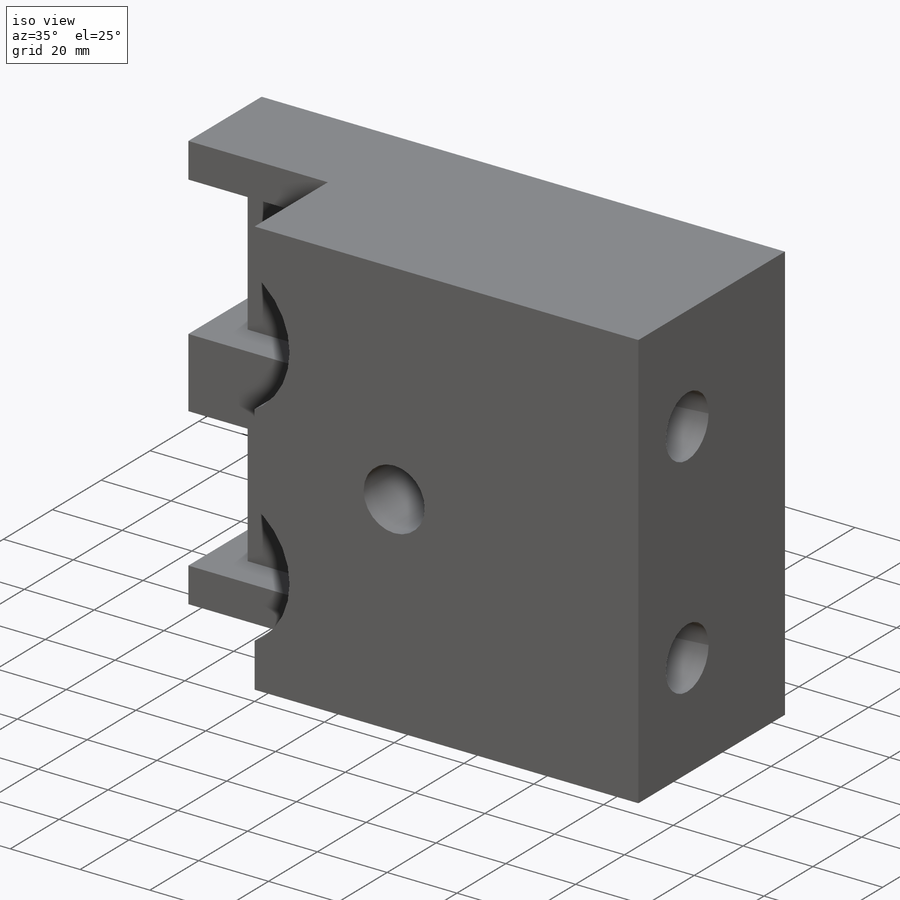
[diagram: iso view]
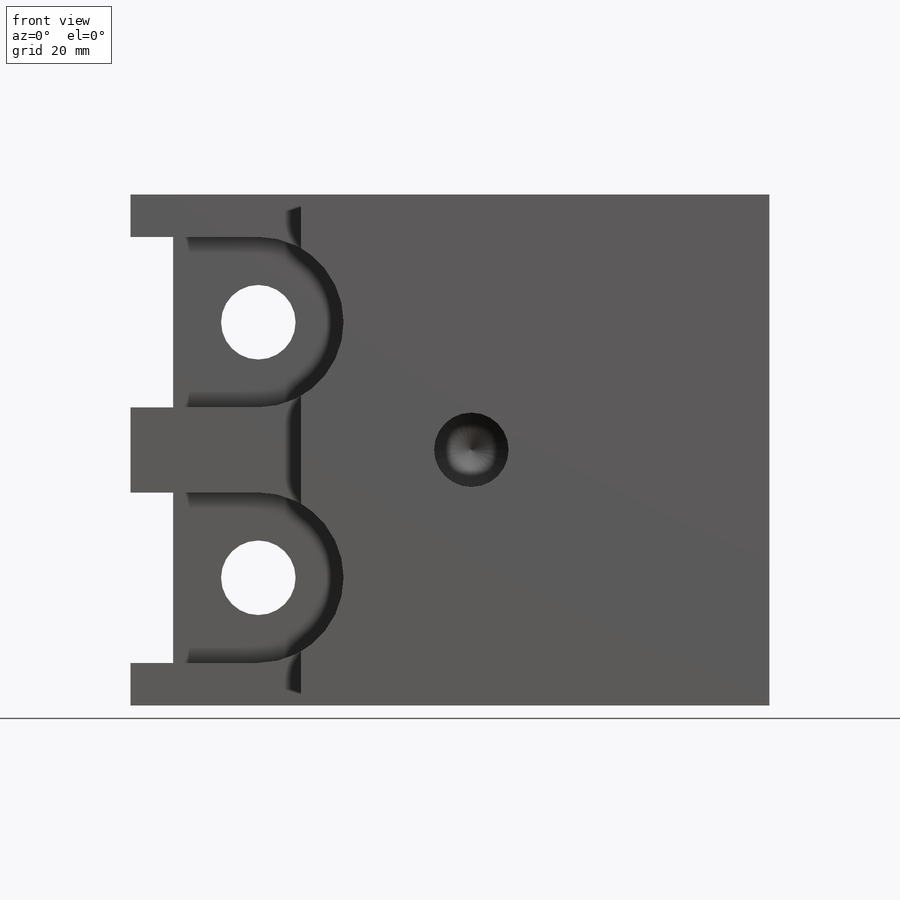
[diagram: front view]
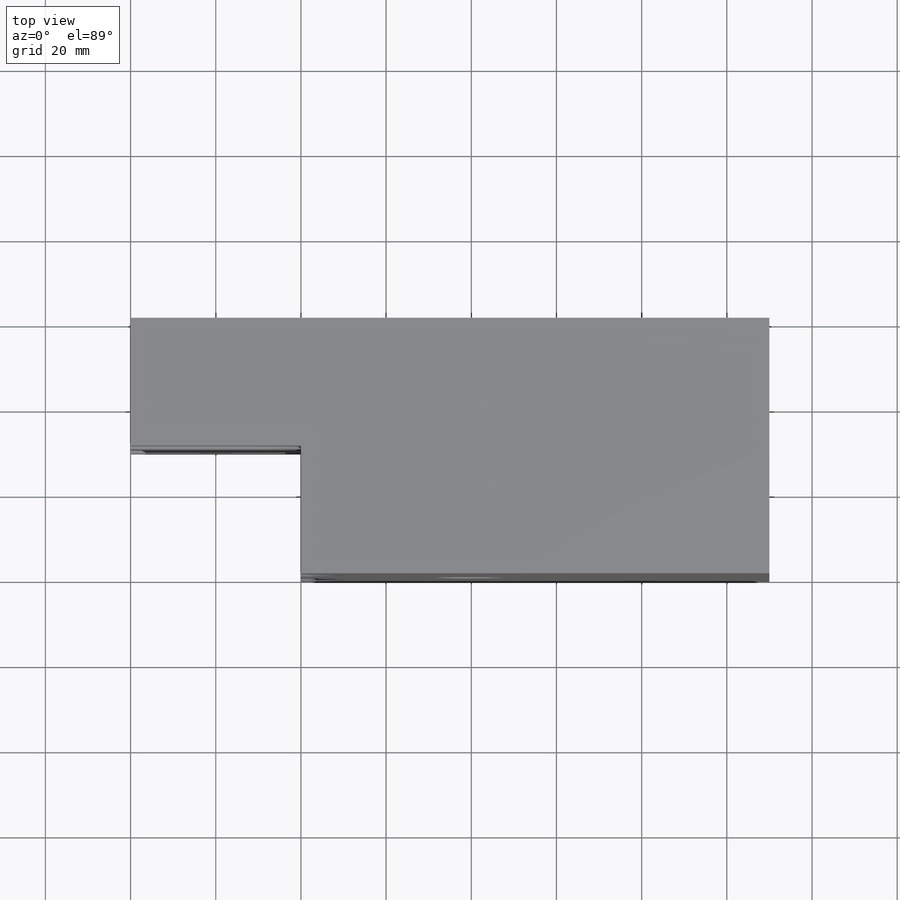
[diagram: top view]
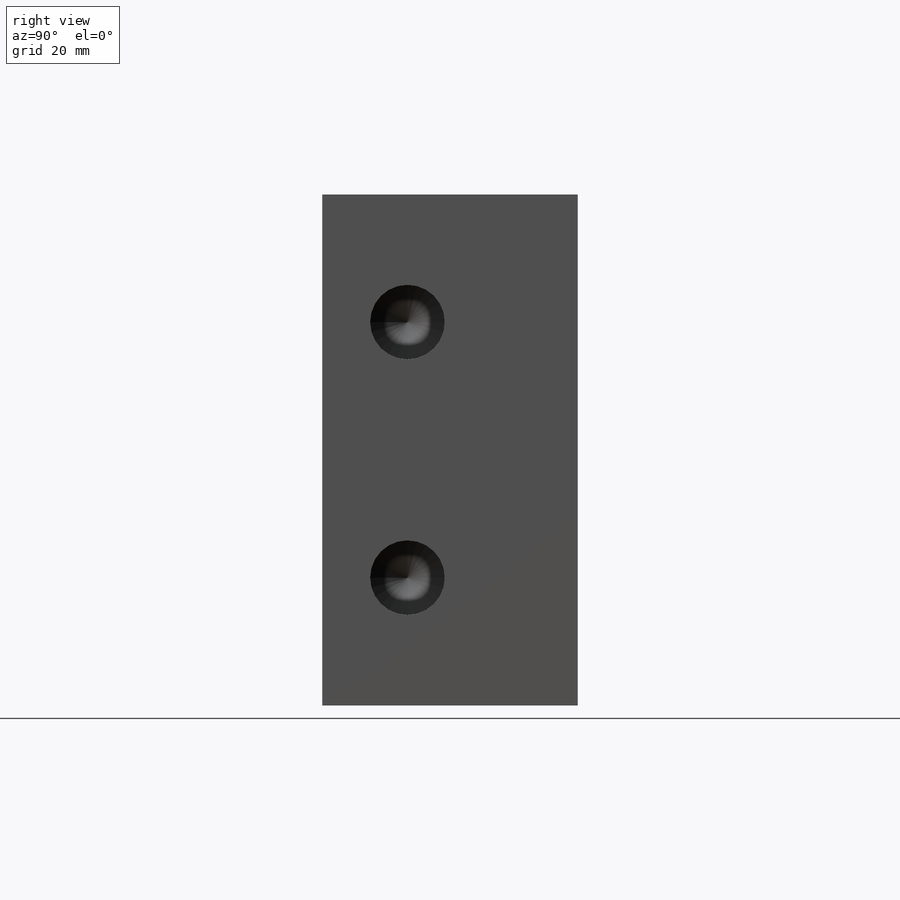
[diagram: right view]
SOLIDWORKS PART (.sldprt)
format: sldprt  version: not decoded by parser v0  size: 348,672 bytes
history: native  units: mm
features: sketch x13, thread x5, cut_extrude x3, hole x3, material x1, extrude x1 (+13 scaffold rows collapsed)
feature tree (39):
  scaffold x13  (default folders/planes/origin — collapsed)
  material  "Material <not specified>"
  sketch  "Sketch1"  dims[D1=150.0mm D2=120.0mm]
  extrude  "Boss-Extrude1"  Depth=60mm
  sketch  "Sketch2"  dims[D1=10.0mm D2=10.0mm D3=40.0mm D4=10.0mm D5=40.0mm D6=10.0mm]
  cut_extrude  "Cut-Extrude1"  Depth=60mm
  sketch  "Sketch3"  dims[c1.D2=20.0mm c1.D1=40.0mm c2.D2=20.0mm c2.D3=20.0mm c2.D4=20.0mm c2.D5=40.0mm c2.D6=20.0mm]
  cut_extrude  "Cut-Extrude2"  Depth=40mm
  sketch  "Sketch4"
  hole  "M20 Tapped Hole1"  Diameter=17.5mm Depth=67.5mm
  sketch  "3DSketch1"
  sketch  "Sketch5"  dims[hole-wizard template sketch: 47 standard entries collapsed; hole parameters kept: c15.Tap Drill Depth=67.5mm c15.D3=~14.816244mm c15.Drill Angle=118.0deg]
  thread  "Hole Thread1"  Diameter=20mm  [1 undecoded]
  thread  "Hole Thread2"  Diameter=20mm  [1 undecoded]
  sketch  "Sketch6"  dims[D1=40.0mm D2=40.0mm D3=40.0mm]
  cut_extrude  "Cut-Extrude4"  Depth=30mm
  sketch  "Sketch7"  dims[D1=40.0mm D2=10.0mm]
  hole  "M20 Tapped Hole2"  Diameter=17.5mm Depth=30mm
  sketch  "3DSketch2"
  sketch  "Sketch8"  dims[hole-wizard template sketch: 47 standard entries collapsed; hole parameters kept: c15.Tap Drill Depth=30.0mm c15.D3=~14.816244mm c15.Drill Angle=118.0deg]
  thread  "Hole Thread3"  Diameter=30mm  [1 undecoded]
  sketch  "Sketch9"  dims[D1=20.0mm D2=30.0mm D3=20.0mm D4=30.0mm]
  hole  "M20 Tapped Hole3"  Diameter=17.5mm Depth=35mm
  sketch  "3DSketch3"
  sketch  "Sketch10"  dims[hole-wizard template sketch: 47 standard entries collapsed; hole parameters kept: c15.Tap Drill Depth=35.0mm c15.D3=~14.816244mm c15.Drill Angle=118.0deg]
  thread  "Hole Thread4"  Diameter=35mm  [1 undecoded]
  thread  "Hole Thread5"  Diameter=35mm  [1 undecoded]
decode coverage: 21 of 25 modeling features carry decoded parameters
note: ~ marks probable driven/reference dimensions
note: 5 parameter values undecoded
note: suppression state not decoded; provenance and decode notes live in map.json
